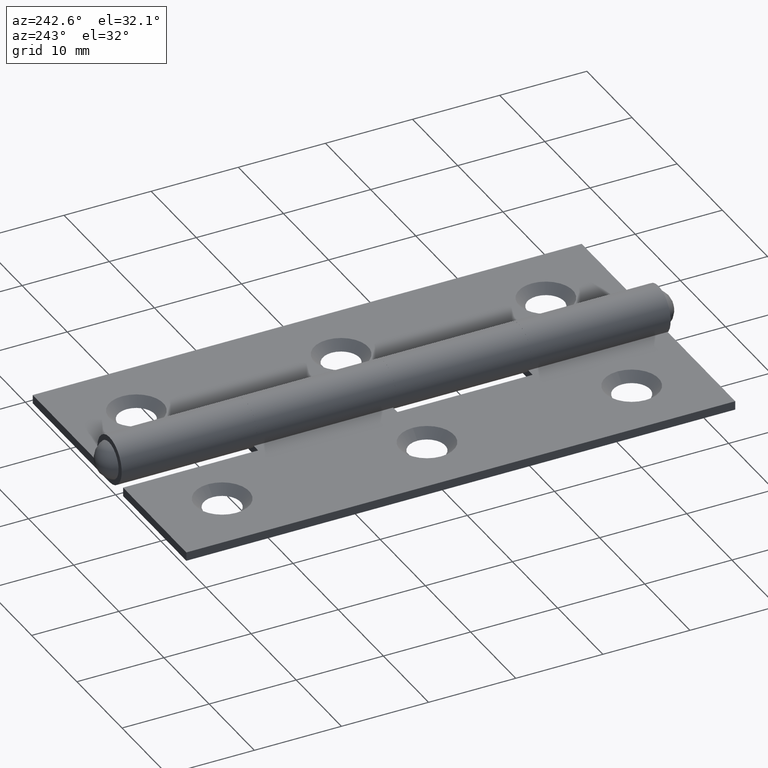
[diagram: clean part render]
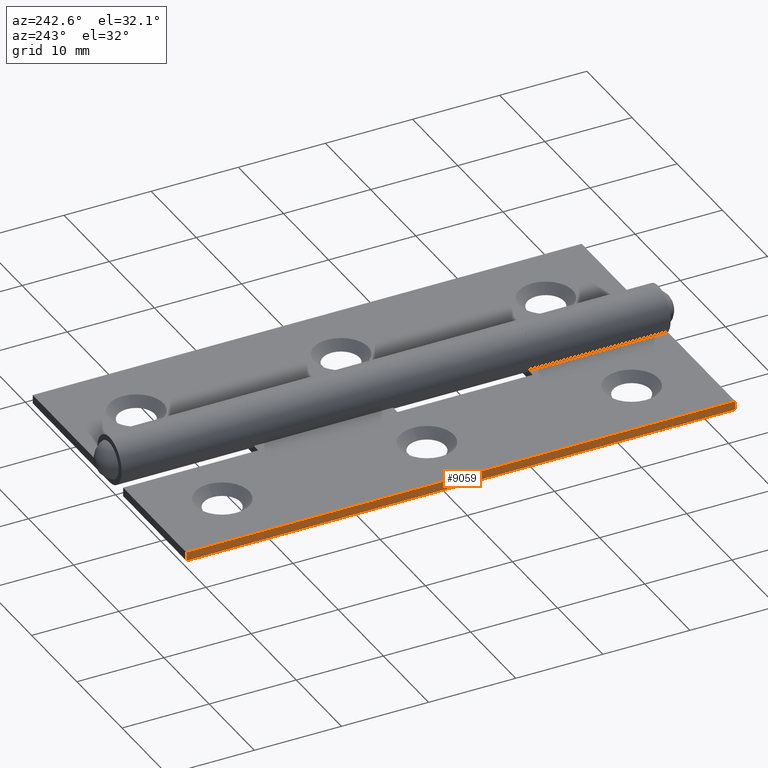
[diagram: same view with one face highlighted and labeled with its STEP entity id]
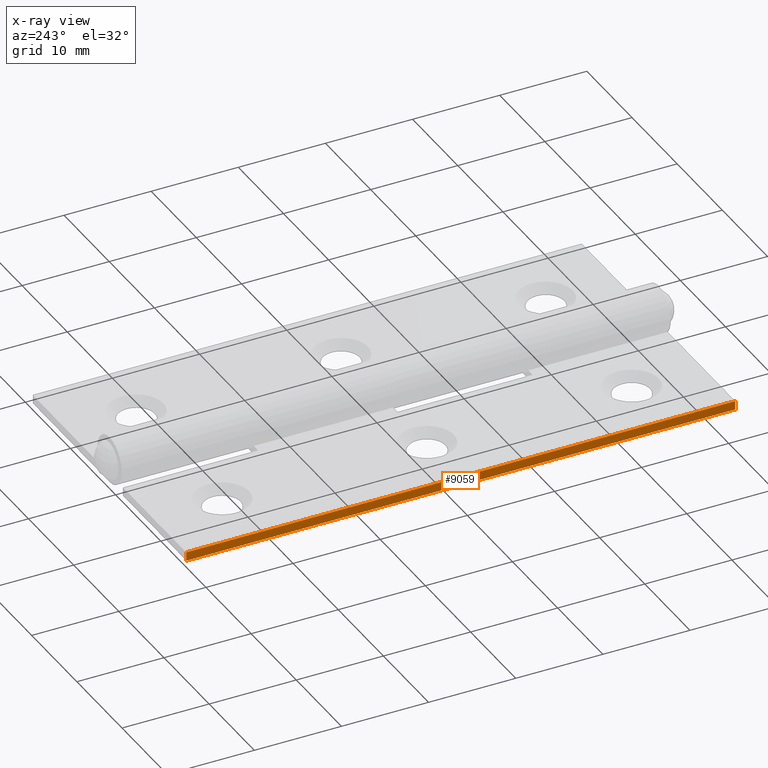
[diagram: x-ray of the same camera — body ghosted, the highlighted face saturated]
A machine part, auxiliary view. The second image highlights one B-rep face of the part: STEP entity #9059.
The next image is the same camera in x-ray: the body ghosted, the highlighted face saturated — about 0% of this face is hidden behind the body in this view.
In plain terms, the highlighted planar face has unit normal (1, 0, 0).
Its self-contained STEP definition (entity closure, byte-faithful):
#173 = CARTESIAN_POINT ( 'NONE',  ( -19.70000000000000284, 31.50000000000000000, 2.168404344971008868E-15 ) ) ;
#1034 = ORIENTED_EDGE ( 'NONE', *, *, #5425, .T. ) ;
#1696 = ORIENTED_EDGE ( 'NONE', *, *, #7178, .F. ) ;
#1844 = LINE ( 'NONE', #173, #5545 ) ;
#1983 = VERTEX_POINT ( 'NONE', #6891 ) ;
#2047 = DIRECTION ( 'NONE',  ( 1.000000000000000000, -0.000000000000000000, 0.000000000000000000 ) ) ;
#2543 = LINE ( 'NONE', #2635, #5273 ) ;
#2635 = CARTESIAN_POINT ( 'NONE',  ( -19.70000000000000284, 31.50000000000000000, 1.000000000000002220 ) ) ;
#2820 = DIRECTION ( 'NONE',  ( -0.000000000000000000, -0.000000000000000000, 1.000000000000000000 ) ) ;
#2976 = PLANE ( 'NONE',  #10790 ) ;
#3232 = EDGE_LOOP ( 'NONE', ( #1034, #11652, #1696, #7427 ) ) ;
#3509 = VECTOR ( 'NONE', #2820, 1000.000000000000000 ) ;
#3551 = DIRECTION ( 'NONE',  ( -0.000000000000000000, -0.000000000000000000, 1.000000000000000000 ) ) ;
#3724 = DIRECTION ( 'NONE',  ( -0.000000000000000000, -1.000000000000000000, -0.000000000000000000 ) ) ;
#3787 = VECTOR ( 'NONE', #3551, 1000.000000000000000 ) ;
#3828 = DIRECTION ( 'NONE',  ( 0.000000000000000000, 0.000000000000000000, -1.000000000000000000 ) ) ;
#4463 = DIRECTION ( 'NONE',  ( -0.000000000000000000, -1.000000000000000000, -0.000000000000000000 ) ) ;
#4490 = CARTESIAN_POINT ( 'NONE',  ( -19.70000000000000284, 31.50000000000000000, 1.000000000000002220 ) ) ;
#4602 = VERTEX_POINT ( 'NONE', #4490 ) ;
#4643 = CARTESIAN_POINT ( 'NONE',  ( -19.70000000000000284, 31.50000000000000000, 2.168404344971008868E-15 ) ) ;
#5273 = VECTOR ( 'NONE', #4463, 1000.000000000000000 ) ;
#5425 = EDGE_CURVE ( 'NONE', #7788, #1983, #7738, .T. ) ;
#5545 = VECTOR ( 'NONE', #3724, 1000.000000000000000 ) ;
#5773 = CARTESIAN_POINT ( 'NONE',  ( -19.70000000000000284, -31.50000000000000000, 2.168404344971008868E-15 ) ) ;
#6548 = CARTESIAN_POINT ( 'NONE',  ( -19.70000000000000284, 31.50000000000000000, 1.000000000000002220 ) ) ;
#6891 = CARTESIAN_POINT ( 'NONE',  ( -19.70000000000000284, -31.50000000000000000, 1.000000000000002220 ) ) ;
#6949 = FACE_OUTER_BOUND ( 'NONE', #3232, .T. ) ;
#7178 = EDGE_CURVE ( 'NONE', #9940, #4602, #8146, .T. ) ;
#7427 = ORIENTED_EDGE ( 'NONE', *, *, #10533, .T. ) ;
#7738 = LINE ( 'NONE', #8161, #3509 ) ;
#7788 = VERTEX_POINT ( 'NONE', #5773 ) ;
#8146 = LINE ( 'NONE', #10012, #3787 ) ;
#8161 = CARTESIAN_POINT ( 'NONE',  ( -19.70000000000000284, -31.50000000000000000, 1.000000000000002220 ) ) ;
#9059 = ADVANCED_FACE ( 'NONE', ( #6949 ), #2976, .F. ) ;
#9940 = VERTEX_POINT ( 'NONE', #4643 ) ;
#10012 = CARTESIAN_POINT ( 'NONE',  ( -19.70000000000000284, 31.50000000000000000, 1.000000000000002220 ) ) ;
#10173 = EDGE_CURVE ( 'NONE', #4602, #1983, #2543, .T. ) ;
#10533 = EDGE_CURVE ( 'NONE', #9940, #7788, #1844, .T. ) ;
#10790 = AXIS2_PLACEMENT_3D ( 'NONE', #6548, #2047, #3828 ) ;
#11652 = ORIENTED_EDGE ( 'NONE', *, *, #10173, .F. ) ;